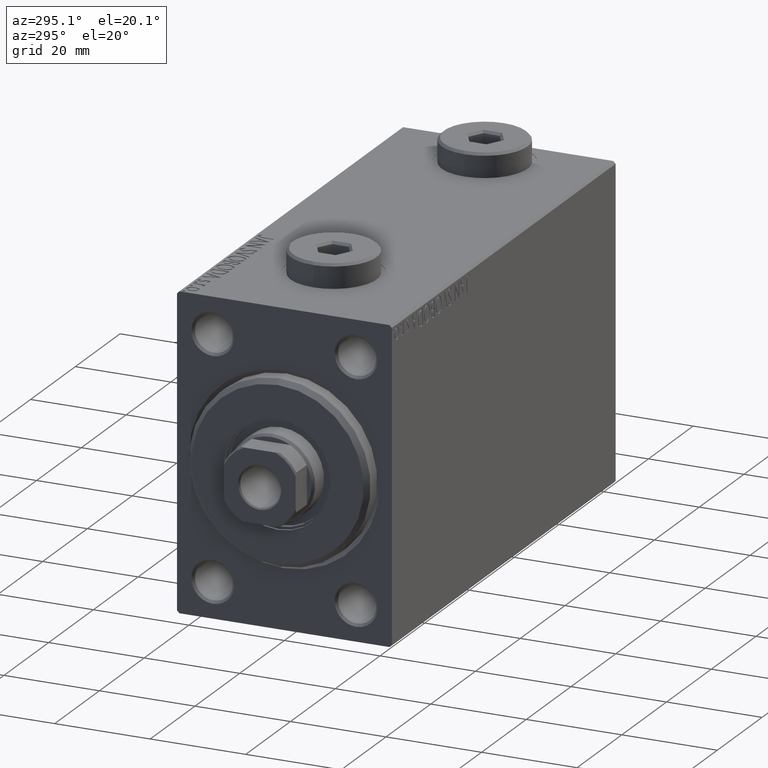
[diagram: clean part render]
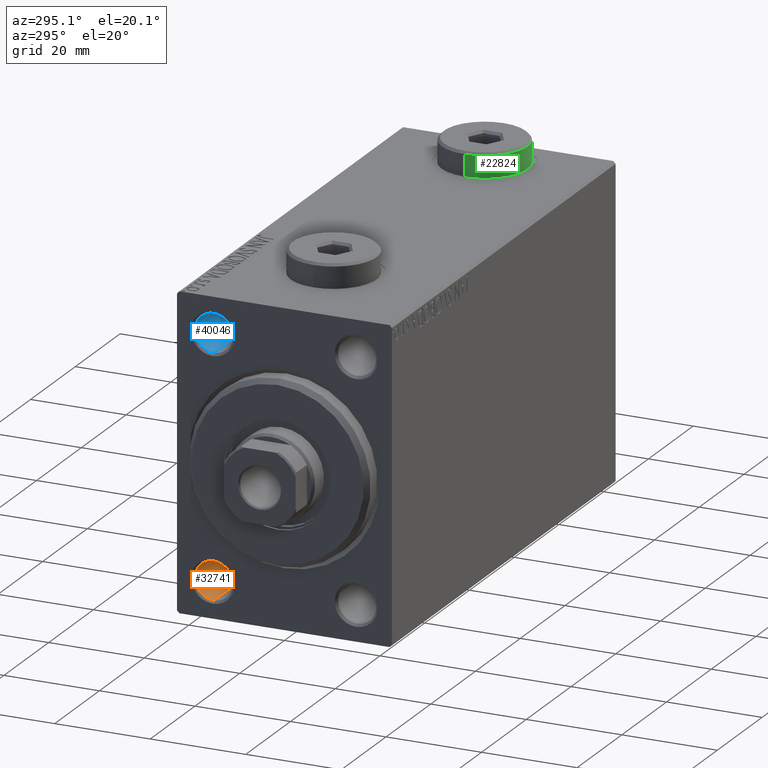
[diagram: same view with three faces highlighted in distinct colors, each labeled with its STEP entity id]
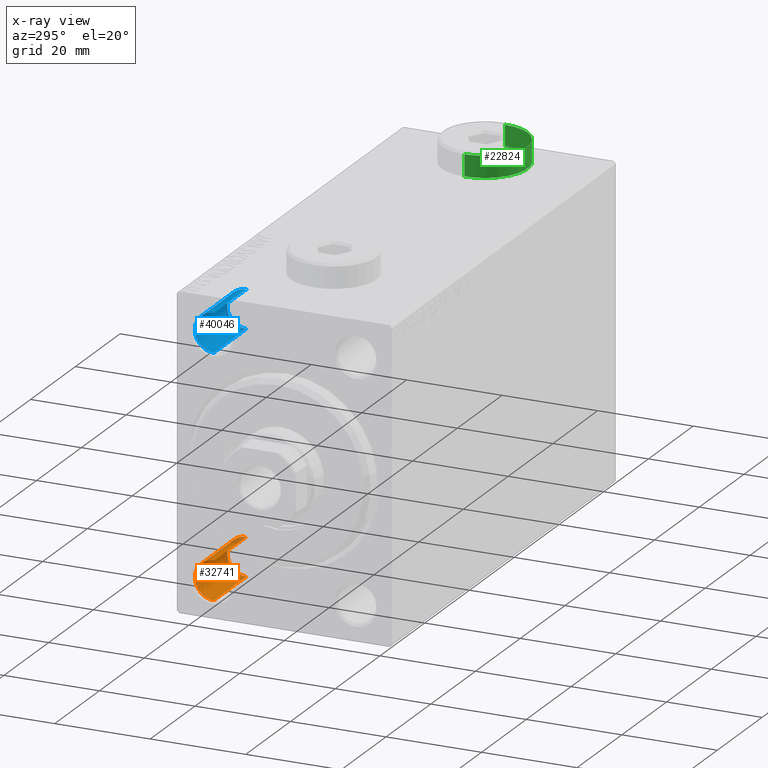
[diagram: x-ray of the same camera — body ghosted, the three highlighted faces saturated]
A machine part, auxiliary view with three faces highlighted in distinct colors.
The next image is the same camera in x-ray (body ghosted, the three faces saturated) — at least one of them is partly hidden behind the body in this view.
Their STEP definitions:

[orange] entity #32741 — the highlighted cylindrical surface (edge-blend (fillet) strip) has radius 4 mm, axis along (-1, -0, -0).
#1172 = DIRECTION ( 'NONE',  ( -1.000000000000000000, -0.000000000000000000, -0.000000000000000000 ) ) ;
#4060 = CARTESIAN_POINT ( 'NONE',  ( 15.00000000000000000, 15.00000000000000178, -21.00000000000000355 ) ) ;
#5594 = VERTEX_POINT ( 'NONE', #12714 ) ;
#9683 = CIRCLE ( 'NONE', #22903, 4.000000000000000000 ) ;
#9975 = VERTEX_POINT ( 'NONE', #30209 ) ;
#10048 = DIRECTION ( 'NONE',  ( 0.000000000000000000, 0.000000000000000000, -1.000000000000000000 ) ) ;
#11788 = DIRECTION ( 'NONE',  ( 0.000000000000000000, 0.000000000000000000, 1.000000000000000000 ) ) ;
#12355 = EDGE_CURVE ( 'NONE', #35380, #33251, #36574, .T. ) ;
#12672 = CYLINDRICAL_SURFACE ( 'NONE', #27258, 4.000000000000000000 ) ;
#12714 = CARTESIAN_POINT ( 'NONE',  ( 15.00000000000000000, 15.00000000000000178, -28.99999999999999645 ) ) ;
#16120 = DIRECTION ( 'NONE',  ( -1.000000000000000000, -0.000000000000000000, -0.000000000000000000 ) ) ;
#19079 = DIRECTION ( 'NONE',  ( -1.000000000000000000, -0.000000000000000000, -0.000000000000000000 ) ) ;
#19854 = AXIS2_PLACEMENT_3D ( 'NONE', #39203, #1172, #11788 ) ;
#22517 = CARTESIAN_POINT ( 'NONE',  ( 0.000000000000000000, 15.00000000000000178, -29.00000000000000000 ) ) ;
#22903 = AXIS2_PLACEMENT_3D ( 'NONE', #44397, #37690, #10048 ) ;
#24483 = ORIENTED_EDGE ( 'NONE', *, *, #41289, .F. ) ;
#24566 = VECTOR ( 'NONE', #40511, 1000.000000000000000 ) ;
#25324 = EDGE_LOOP ( 'NONE', ( #24483, #36351, #31469, #28597 ) ) ;
#25972 = LINE ( 'NONE', #22517, #24566 ) ;
#27258 = AXIS2_PLACEMENT_3D ( 'NONE', #29705, #16120, #30160 ) ;
#28597 = ORIENTED_EDGE ( 'NONE', *, *, #35228, .T. ) ;
#29223 = EDGE_CURVE ( 'NONE', #35380, #5594, #32339, .T. ) ;
#29705 = CARTESIAN_POINT ( 'NONE',  ( 0.000000000000000000, 15.00000000000000178, -25.00000000000000000 ) ) ;
#30160 = DIRECTION ( 'NONE',  ( 0.000000000000000000, 0.000000000000000000, 1.000000000000000000 ) ) ;
#30209 = CARTESIAN_POINT ( 'NONE',  ( 0.5000000000000455191, 15.00000000000000178, -29.00000000000000000 ) ) ;
#31469 = ORIENTED_EDGE ( 'NONE', *, *, #12355, .T. ) ;
#32339 = CIRCLE ( 'NONE', #19854, 3.999999999999996447 ) ;
#32741 = ADVANCED_FACE ( 'NONE', ( #40767 ), #12672, .F. ) ;
#33251 = VERTEX_POINT ( 'NONE', #38091 ) ;
#33333 = CARTESIAN_POINT ( 'NONE',  ( 0.000000000000000000, 15.00000000000000178, -21.00000000000000000 ) ) ;
#35228 = EDGE_CURVE ( 'NONE', #33251, #9975, #9683, .T. ) ;
#35380 = VERTEX_POINT ( 'NONE', #4060 ) ;
#36351 = ORIENTED_EDGE ( 'NONE', *, *, #29223, .F. ) ;
#36574 = LINE ( 'NONE', #33333, #44635 ) ;
#37690 = DIRECTION ( 'NONE',  ( -1.000000000000000000, 0.000000000000000000, 0.000000000000000000 ) ) ;
#38091 = CARTESIAN_POINT ( 'NONE',  ( 0.5000000000000455191, 15.00000000000000178, -21.00000000000000000 ) ) ;
#39203 = CARTESIAN_POINT ( 'NONE',  ( 15.00000000000000000, 15.00000000000000178, -25.00000000000000000 ) ) ;
#40511 = DIRECTION ( 'NONE',  ( -1.000000000000000000, -0.000000000000000000, -0.000000000000000000 ) ) ;
#40767 = FACE_OUTER_BOUND ( 'NONE', #25324, .T. ) ;
#41289 = EDGE_CURVE ( 'NONE', #5594, #9975, #25972, .T. ) ;
#44397 = CARTESIAN_POINT ( 'NONE',  ( 0.5000000000000455191, 15.00000000000000178, -25.00000000000000000 ) ) ;
#44635 = VECTOR ( 'NONE', #19079, 1000.000000000000000 ) ;

[blue] entity #40046 — the highlighted cylindrical surface (edge-blend (fillet) strip) has radius 4 mm, axis along (-1, -0, -0).
#1498 = CARTESIAN_POINT ( 'NONE',  ( 0.4999999999999622524, 15.00000000000000178, 25.00000000000000000 ) ) ;
#2203 = CIRCLE ( 'NONE', #20566, 3.999999999999996447 ) ;
#2750 = VERTEX_POINT ( 'NONE', #30406 ) ;
#4882 = CARTESIAN_POINT ( 'NONE',  ( 0.4999999999999622524, 15.00000000000000178, 29.00000000000000000 ) ) ;
#6099 = VERTEX_POINT ( 'NONE', #16497 ) ;
#6122 = AXIS2_PLACEMENT_3D ( 'NONE', #6991, #38329, #27947 ) ;
#6191 = ORIENTED_EDGE ( 'NONE', *, *, #45004, .F. ) ;
#6991 = CARTESIAN_POINT ( 'NONE',  ( 0.000000000000000000, 15.00000000000000178, 25.00000000000000000 ) ) ;
#13670 = DIRECTION ( 'NONE',  ( -1.000000000000000000, -0.000000000000000000, -0.000000000000000000 ) ) ;
#13922 = FACE_OUTER_BOUND ( 'NONE', #29724, .T. ) ;
#15814 = DIRECTION ( 'NONE',  ( -1.000000000000000000, -0.000000000000000000, -0.000000000000000000 ) ) ;
#16124 = ORIENTED_EDGE ( 'NONE', *, *, #38388, .T. ) ;
#16497 = CARTESIAN_POINT ( 'NONE',  ( 15.00000000000000000, 15.00000000000000178, 21.00000000000000355 ) ) ;
#20566 = AXIS2_PLACEMENT_3D ( 'NONE', #26163, #15814, #23157 ) ;
#21816 = VECTOR ( 'NONE', #13670, 1000.000000000000000 ) ;
#22748 = ORIENTED_EDGE ( 'NONE', *, *, #25482, .F. ) ;
#22895 = CARTESIAN_POINT ( 'NONE',  ( 0.000000000000000000, 15.00000000000000178, 29.00000000000000000 ) ) ;
#23157 = DIRECTION ( 'NONE',  ( 0.000000000000000000, 0.000000000000000000, 1.000000000000000000 ) ) ;
#25256 = VERTEX_POINT ( 'NONE', #36825 ) ;
#25482 = EDGE_CURVE ( 'NONE', #25256, #6099, #2203, .T. ) ;
#26163 = CARTESIAN_POINT ( 'NONE',  ( 15.00000000000000000, 15.00000000000000178, 25.00000000000000000 ) ) ;
#26658 = EDGE_CURVE ( 'NONE', #25256, #43468, #40430, .T. ) ;
#26791 = DIRECTION ( 'NONE',  ( -1.000000000000000000, 0.000000000000000000, 0.000000000000000000 ) ) ;
#27947 = DIRECTION ( 'NONE',  ( 0.000000000000000000, 0.000000000000000000, 1.000000000000000000 ) ) ;
#28391 = CARTESIAN_POINT ( 'NONE',  ( 0.000000000000000000, 15.00000000000000178, 21.00000000000000000 ) ) ;
#29724 = EDGE_LOOP ( 'NONE', ( #6191, #22748, #45544, #16124 ) ) ;
#30260 = DIRECTION ( 'NONE',  ( 0.000000000000000000, 0.000000000000000000, -1.000000000000000000 ) ) ;
#30406 = CARTESIAN_POINT ( 'NONE',  ( 0.4999999999999622524, 15.00000000000000178, 21.00000000000000000 ) ) ;
#35067 = LINE ( 'NONE', #28391, #21816 ) ;
#36825 = CARTESIAN_POINT ( 'NONE',  ( 15.00000000000000000, 15.00000000000000178, 28.99999999999999645 ) ) ;
#37725 = AXIS2_PLACEMENT_3D ( 'NONE', #1498, #26791, #30260 ) ;
#38329 = DIRECTION ( 'NONE',  ( -1.000000000000000000, -0.000000000000000000, -0.000000000000000000 ) ) ;
#38388 = EDGE_CURVE ( 'NONE', #43468, #2750, #45119, .T. ) ;
#40046 = ADVANCED_FACE ( 'NONE', ( #13922 ), #45036, .F. ) ;
#40430 = LINE ( 'NONE', #22895, #43454 ) ;
#41540 = DIRECTION ( 'NONE',  ( -1.000000000000000000, -0.000000000000000000, -0.000000000000000000 ) ) ;
#43454 = VECTOR ( 'NONE', #41540, 1000.000000000000000 ) ;
#43468 = VERTEX_POINT ( 'NONE', #4882 ) ;
#45004 = EDGE_CURVE ( 'NONE', #6099, #2750, #35067, .T. ) ;
#45036 = CYLINDRICAL_SURFACE ( 'NONE', #6122, 4.000000000000000000 ) ;
#45119 = CIRCLE ( 'NONE', #37725, 4.000000000000000000 ) ;
#45544 = ORIENTED_EDGE ( 'NONE', *, *, #26658, .T. ) ;

[green] entity #22824 — the highlighted cylindrical surface (partial cylindrical patch) has radius 9 mm, axis along (-0, -0, -1).
#126 = LINE ( 'NONE', #3827, #5586 ) ;
#674 = CARTESIAN_POINT ( 'NONE',  ( -9.000000000000001776, 0.000000000000000000, 5.000000000000000000 ) ) ;
#3827 = CARTESIAN_POINT ( 'NONE',  ( 9.000000000000001776, 1.102182119232617911E-15, 5.000000000000000000 ) ) ;
#4139 = LINE ( 'NONE', #674, #14707 ) ;
#4309 = DIRECTION ( 'NONE',  ( 1.000000000000000000, 0.000000000000000000, 0.000000000000000000 ) ) ;
#4492 = CARTESIAN_POINT ( 'NONE',  ( 0.000000000000000000, 0.000000000000000000, 5.000000000000000000 ) ) ;
#5586 = VECTOR ( 'NONE', #31678, 1000.000000000000000 ) ;
#5814 = AXIS2_PLACEMENT_3D ( 'NONE', #4492, #25199, #15068 ) ;
#6321 = ORIENTED_EDGE ( 'NONE', *, *, #29541, .T. ) ;
#11398 = CYLINDRICAL_SURFACE ( 'NONE', #5814, 9.000000000000001776 ) ;
#12172 = EDGE_CURVE ( 'NONE', #15105, #27780, #36495, .T. ) ;
#14707 = VECTOR ( 'NONE', #32667, 1000.000000000000000 ) ;
#15068 = DIRECTION ( 'NONE',  ( -1.000000000000000000, 0.000000000000000000, 0.000000000000000000 ) ) ;
#15105 = VERTEX_POINT ( 'NONE', #26334 ) ;
#15351 = DIRECTION ( 'NONE',  ( 0.000000000000000000, 0.000000000000000000, 1.000000000000000000 ) ) ;
#15763 = EDGE_CURVE ( 'NONE', #15105, #23653, #126, .T. ) ;
#17453 = ORIENTED_EDGE ( 'NONE', *, *, #21887, .T. ) ;
#17454 = CARTESIAN_POINT ( 'NONE',  ( 9.000000000000001776, 1.102182119232617911E-15, 0.000000000000000000 ) ) ;
#18332 = EDGE_LOOP ( 'NONE', ( #36333, #41880, #6321, #17453 ) ) ;
#18353 = CARTESIAN_POINT ( 'NONE',  ( 0.000000000000000000, 0.000000000000000000, 0.000000000000000000 ) ) ;
#21038 = AXIS2_PLACEMENT_3D ( 'NONE', #27361, #31275, #31056 ) ;
#21887 = EDGE_CURVE ( 'NONE', #24443, #23653, #33006, .T. ) ;
#22824 = ADVANCED_FACE ( 'NONE', ( #24981 ), #11398, .T. ) ;
#23653 = VERTEX_POINT ( 'NONE', #17454 ) ;
#24443 = VERTEX_POINT ( 'NONE', #30560 ) ;
#24981 = FACE_OUTER_BOUND ( 'NONE', #18332, .T. ) ;
#25199 = DIRECTION ( 'NONE',  ( -0.000000000000000000, -0.000000000000000000, -1.000000000000000000 ) ) ;
#26334 = CARTESIAN_POINT ( 'NONE',  ( 9.000000000000001776, 1.102182119232617911E-15, 4.500000000000006217 ) ) ;
#27361 = CARTESIAN_POINT ( 'NONE',  ( 0.000000000000000000, 0.000000000000000000, 4.500000000000006217 ) ) ;
#27780 = VERTEX_POINT ( 'NONE', #30596 ) ;
#29541 = EDGE_CURVE ( 'NONE', #27780, #24443, #4139, .T. ) ;
#30560 = CARTESIAN_POINT ( 'NONE',  ( -9.000000000000001776, 0.000000000000000000, 0.000000000000000000 ) ) ;
#30596 = CARTESIAN_POINT ( 'NONE',  ( -9.000000000000001776, 0.000000000000000000, 4.500000000000006217 ) ) ;
#31056 = DIRECTION ( 'NONE',  ( 1.000000000000000000, 0.000000000000000000, 0.000000000000000000 ) ) ;
#31275 = DIRECTION ( 'NONE',  ( 0.000000000000000000, 0.000000000000000000, -1.000000000000000000 ) ) ;
#31678 = DIRECTION ( 'NONE',  ( -0.000000000000000000, -0.000000000000000000, -1.000000000000000000 ) ) ;
#32667 = DIRECTION ( 'NONE',  ( -0.000000000000000000, -0.000000000000000000, -1.000000000000000000 ) ) ;
#33006 = CIRCLE ( 'NONE', #43318, 9.000000000000001776 ) ;
#36333 = ORIENTED_EDGE ( 'NONE', *, *, #15763, .F. ) ;
#36495 = CIRCLE ( 'NONE', #21038, 9.000000000000001776 ) ;
#41880 = ORIENTED_EDGE ( 'NONE', *, *, #12172, .T. ) ;
#43318 = AXIS2_PLACEMENT_3D ( 'NONE', #18353, #15351, #4309 ) ;